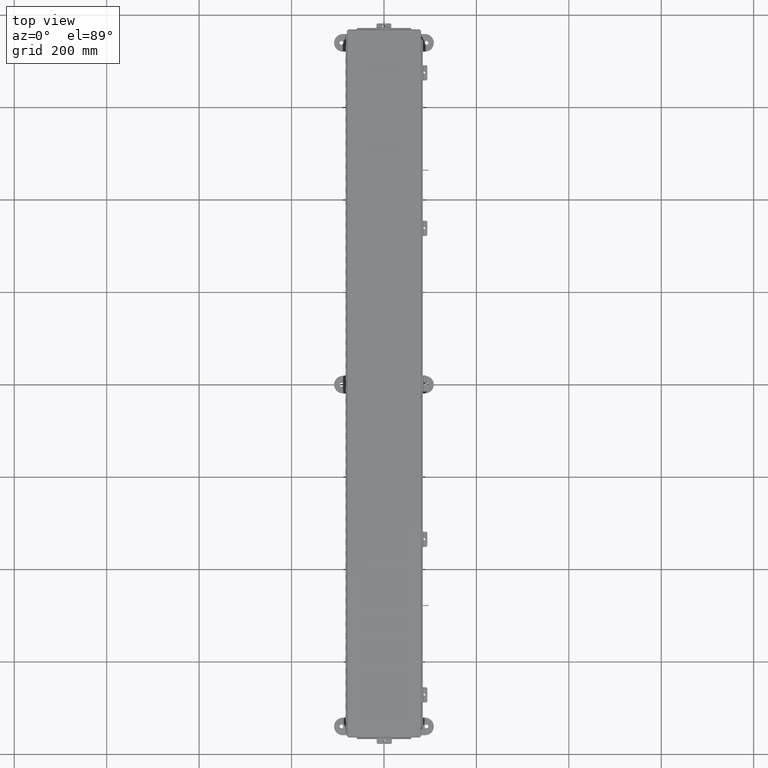
[diagram: clean part render]
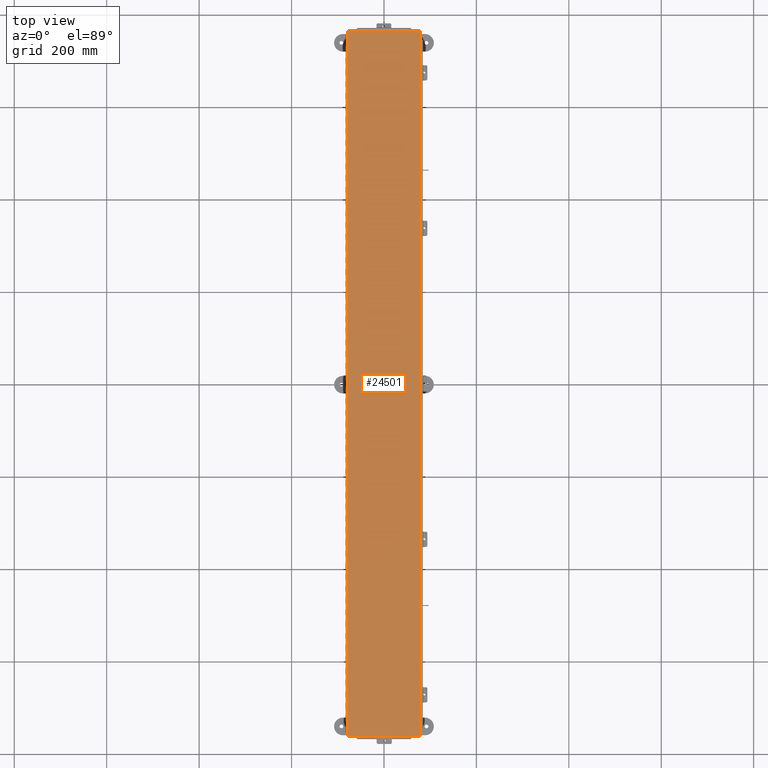
[diagram: same view with one face highlighted and labeled with its STEP entity id]
A machine part, top view. The second image highlights one B-rep face of the part: STEP entity #24501.
In plain terms, the highlighted planar face has unit normal (0, -0, 1).
Its self-contained STEP definition (entity closure, byte-faithful):
#286 = LINE ( 'NONE', #35039, #42912 ) ;
#926 = PLANE ( 'NONE',  #21030 ) ;
#2071 = VERTEX_POINT ( 'NONE', #16648 ) ;
#3108 = CARTESIAN_POINT ( 'NONE',  ( -3.068550000000001900, -30.07447893218813900, -0.07470000000000125200 ) ) ;
#5086 = CARTESIAN_POINT ( 'NONE',  ( 3.074478932188131600, -30.06855000000000500, -0.07470000000000015500 ) ) ;
#10176 = VERTEX_POINT ( 'NONE', #41966 ) ;
#10304 = DIRECTION ( 'NONE',  ( -1.419850353612258400E-028, -1.000000000000000000, -8.519697776386927500E-029 ) ) ;
#10558 = EDGE_CURVE ( 'NONE', #2071, #21352, #28723, .T. ) ;
#11087 = DIRECTION ( 'NONE',  ( -1.000000000000000000, -1.419850353612256200E-028, 0.0000000000000000000 ) ) ;
#13303 = CARTESIAN_POINT ( 'NONE',  ( 3.068549999999997900, -30.06855000000000500, -0.07470000000000015500 ) ) ;
#14143 = VECTOR ( 'NONE', #20047, 39.37007874015748100 ) ;
#14876 = DIRECTION ( 'NONE',  ( 1.000000000000000000, 1.419850353612256200E-028, -0.0000000000000000000 ) ) ;
#14984 = VECTOR ( 'NONE', #38597, 39.37007874015748100 ) ;
#16648 = CARTESIAN_POINT ( 'NONE',  ( 3.068549999999997400, 30.06854999999999100, -0.07469999999999907300 ) ) ;
#17526 = VERTEX_POINT ( 'NONE', #34353 ) ;
#18151 = ORIENTED_EDGE ( 'NONE', *, *, #30079, .T. ) ;
#19771 = VECTOR ( 'NONE', #10304, 39.37007874015748100 ) ;
#19883 = ORIENTED_EDGE ( 'NONE', *, *, #27837, .T. ) ;
#20047 = DIRECTION ( 'NONE',  ( 1.419850353612258400E-028, 1.000000000000000000, 8.519697776386927500E-029 ) ) ;
#20302 = CARTESIAN_POINT ( 'NONE',  ( 3.068549999999997400, 30.07447893218812900, -0.07469999999999907300 ) ) ;
#20344 = FACE_OUTER_BOUND ( 'NONE', #24334, .T. ) ;
#21030 = AXIS2_PLACEMENT_3D ( 'NONE', #37843, #31223, #11087 ) ;
#21352 = VERTEX_POINT ( 'NONE', #13303 ) ;
#23100 = LINE ( 'NONE', #3108, #14143 ) ;
#24334 = EDGE_LOOP ( 'NONE', ( #27913, #43142, #18151, #19883 ) ) ;
#24501 = ADVANCED_FACE ( 'NONE', ( #20344 ), #926, .T. ) ;
#27837 = EDGE_CURVE ( 'NONE', #17526, #10176, #23100, .T. ) ;
#27913 = ORIENTED_EDGE ( 'NONE', *, *, #34723, .T. ) ;
#28723 = LINE ( 'NONE', #20302, #19771 ) ;
#30079 = EDGE_CURVE ( 'NONE', #21352, #17526, #41843, .T. ) ;
#31223 = DIRECTION ( 'NONE',  ( 1.209669590047253200E-056, -8.519697776386927500E-029, -1.000000000000000000 ) ) ;
#34353 = CARTESIAN_POINT ( 'NONE',  ( -3.068550000000001900, -30.06854999999999500, -0.07470000000000125200 ) ) ;
#34723 = EDGE_CURVE ( 'NONE', #10176, #2071, #286, .T. ) ;
#35039 = CARTESIAN_POINT ( 'NONE',  ( -3.074478932188136100, 30.06854999999999800, -0.07470000000000015500 ) ) ;
#37843 = CARTESIAN_POINT ( 'NONE',  ( 0.0000000000000000000, 0.0000000000000000000, -0.07470000000000015500 ) ) ;
#38597 = DIRECTION ( 'NONE',  ( -1.000000000000000000, -1.419850353612256200E-028, -0.0000000000000000000 ) ) ;
#41843 = LINE ( 'NONE', #5086, #14984 ) ;
#41966 = CARTESIAN_POINT ( 'NONE',  ( -3.068550000000002300, 30.06854999999999800, -0.07470000000000015500 ) ) ;
#42912 = VECTOR ( 'NONE', #14876, 39.37007874015748100 ) ;
#43142 = ORIENTED_EDGE ( 'NONE', *, *, #10558, .T. ) ;